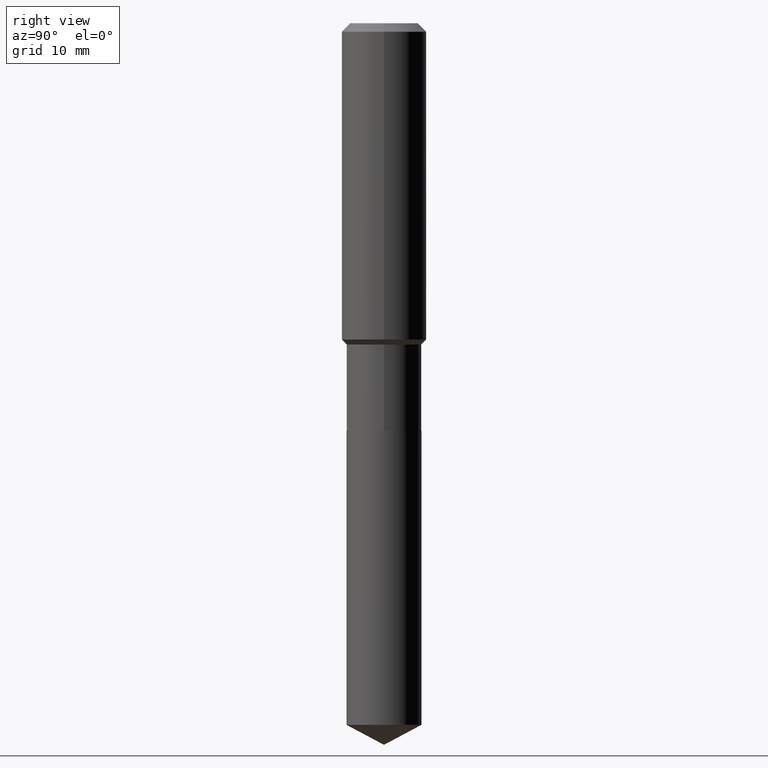
[diagram: clean part render]
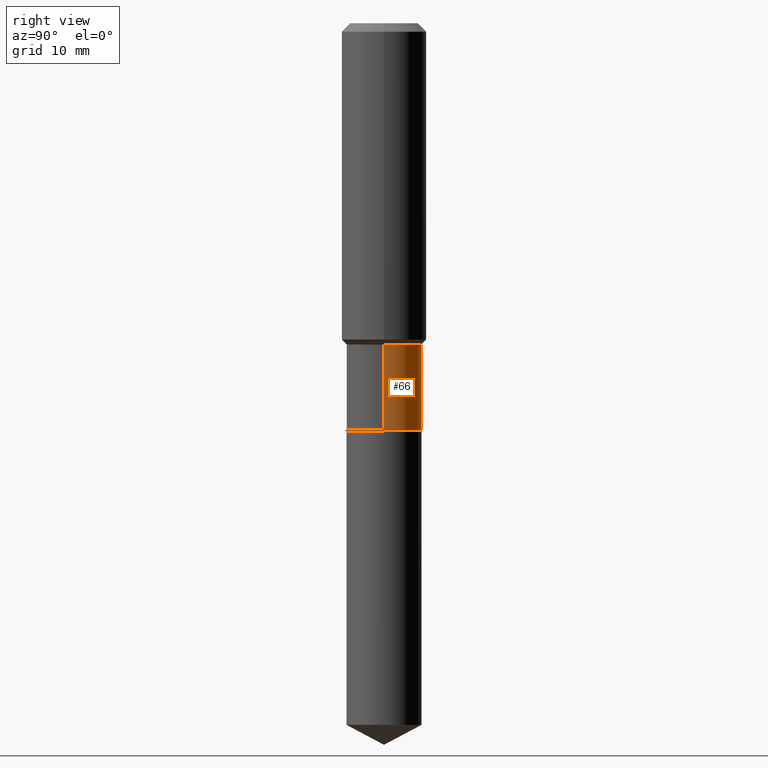
[diagram: same view with one face highlighted and labeled with its STEP entity id]
A machine part, right view. The second image highlights one B-rep face of the part: STEP entity #66.
In plain terms, the highlighted cylindrical surface (partial cylindrical patch) has radius 5.2997 mm, axis along (-0, 0, 1).
Its self-contained STEP definition (entity closure, byte-faithful):
#5 = CARTESIAN_POINT ( 'NONE',  ( 0.2086499999999999466, -7.698716352149130505E-15, -1.787699999999999845 ) ) ;
#7 = VECTOR ( 'NONE', #408, 39.37007874015748143 ) ;
#23 = VERTEX_POINT ( 'NONE', #231 ) ;
#56 = CARTESIAN_POINT ( 'NONE',  ( 4.371764584817168227E-29, -6.241721189449890773E-15, -1.787699999999999845 ) ) ;
#57 = AXIS2_PLACEMENT_3D ( 'NONE', #486, #272, #353 ) ;
#66 = ADVANCED_FACE ( 'NONE', ( #419 ), #459, .T. ) ;
#83 = VECTOR ( 'NONE', #115, 39.37007874015748143 ) ;
#101 = DIRECTION ( 'NONE',  ( 1.000000000000000000, -6.982962677686267499E-15, 0.000000000000000000 ) ) ;
#103 = VERTEX_POINT ( 'NONE', #196 ) ;
#115 = DIRECTION ( 'NONE',  ( -2.445468806185136877E-29, 3.491481338843145188E-15, 1.000000000000000000 ) ) ;
#136 = LINE ( 'NONE', #252, #7 ) ;
#161 = DIRECTION ( 'NONE',  ( -2.445468806185136597E-29, 3.491481338843145583E-15, 1.000000000000000000 ) ) ;
#196 = CARTESIAN_POINT ( 'NONE',  ( -0.2086500000000000021, -5.596081848207143663E-15, -2.267100000000000115 ) ) ;
#203 = CARTESIAN_POINT ( 'NONE',  ( 5.544122330502323530E-29, -7.915537343291296237E-15, -2.267100000000000115 ) ) ;
#211 = DIRECTION ( 'NONE',  ( 1.000000000000000000, -6.982962677686265922E-15, 0.000000000000000000 ) ) ;
#213 = CARTESIAN_POINT ( 'NONE',  ( -0.2086499999999999466, -5.596081848207143663E-15, -1.787699999999999845 ) ) ;
#226 = EDGE_CURVE ( 'NONE', #103, #417, #316, .T. ) ;
#231 = CARTESIAN_POINT ( 'NONE',  ( 0.2086500000000000021, -9.372532505990534391E-15, -2.267100000000000115 ) ) ;
#239 = EDGE_CURVE ( 'NONE', #23, #103, #484, .T. ) ;
#252 = CARTESIAN_POINT ( 'NONE',  ( 0.2086499999999999744, -1.456995162699239338E-15, 1.017414284269821845E-29 ) ) ;
#257 = EDGE_LOOP ( 'NONE', ( #469, #477, #258, #368 ) ) ;
#258 = ORIENTED_EDGE ( 'NONE', *, *, #464, .F. ) ;
#272 = DIRECTION ( 'NONE',  ( -2.445468806185136597E-29, 3.491481338843145583E-15, 1.000000000000000000 ) ) ;
#316 = LINE ( 'NONE', #465, #83 ) ;
#353 = DIRECTION ( 'NONE',  ( 1.000000000000000000, -6.982962677686266711E-15, 4.876176775795935793E-29 ) ) ;
#364 = AXIS2_PLACEMENT_3D ( 'NONE', #203, #161, #211 ) ;
#368 = ORIENTED_EDGE ( 'NONE', *, *, #462, .F. ) ;
#398 = CIRCLE ( 'NONE', #468, 0.2086499999999999466 ) ;
#408 = DIRECTION ( 'NONE',  ( -2.445468806185136877E-29, 3.491481338843145188E-15, 1.000000000000000000 ) ) ;
#416 = DIRECTION ( 'NONE',  ( -2.445468806185136597E-29, 3.491481338843145583E-15, 1.000000000000000000 ) ) ;
#417 = VERTEX_POINT ( 'NONE', #213 ) ;
#419 = FACE_OUTER_BOUND ( 'NONE', #257, .T. ) ;
#459 = CYLINDRICAL_SURFACE ( 'NONE', #57, 0.2086499999999999744 ) ;
#462 = EDGE_CURVE ( 'NONE', #23, #471, #136, .T. ) ;
#464 = EDGE_CURVE ( 'NONE', #471, #417, #398, .T. ) ;
#465 = CARTESIAN_POINT ( 'NONE',  ( -0.2086499999999999744, 1.482547418163448856E-15, -1.026335806581685820E-29 ) ) ;
#468 = AXIS2_PLACEMENT_3D ( 'NONE', #56, #416, #101 ) ;
#469 = ORIENTED_EDGE ( 'NONE', *, *, #239, .T. ) ;
#471 = VERTEX_POINT ( 'NONE', #5 ) ;
#477 = ORIENTED_EDGE ( 'NONE', *, *, #226, .T. ) ;
#484 = CIRCLE ( 'NONE', #364, 0.2086500000000000021 ) ;
#486 = CARTESIAN_POINT ( 'NONE',  ( 0.000000000000000000, 0.000000000000000000, 0.000000000000000000 ) ) ;